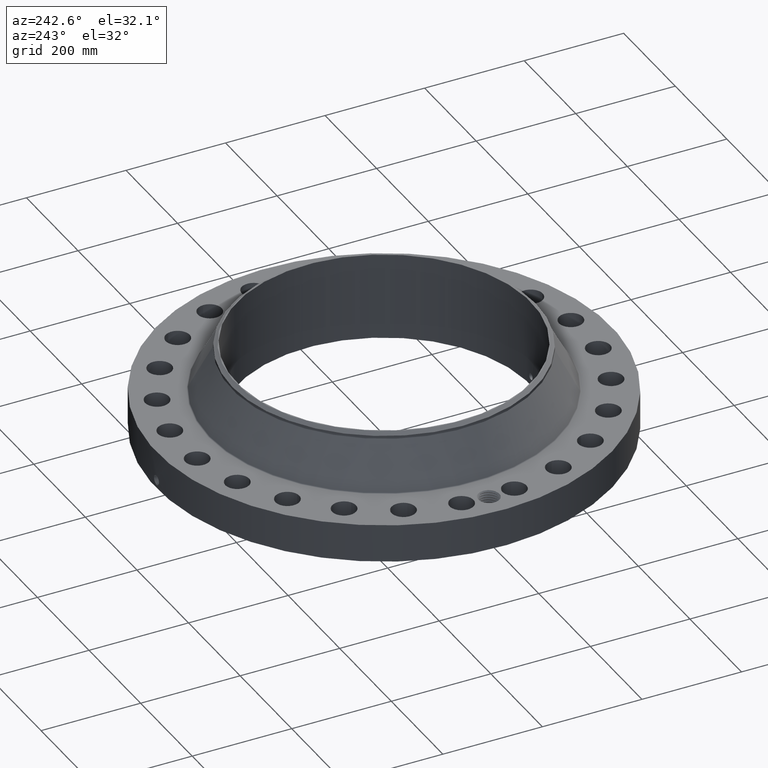
[diagram: clean part render]
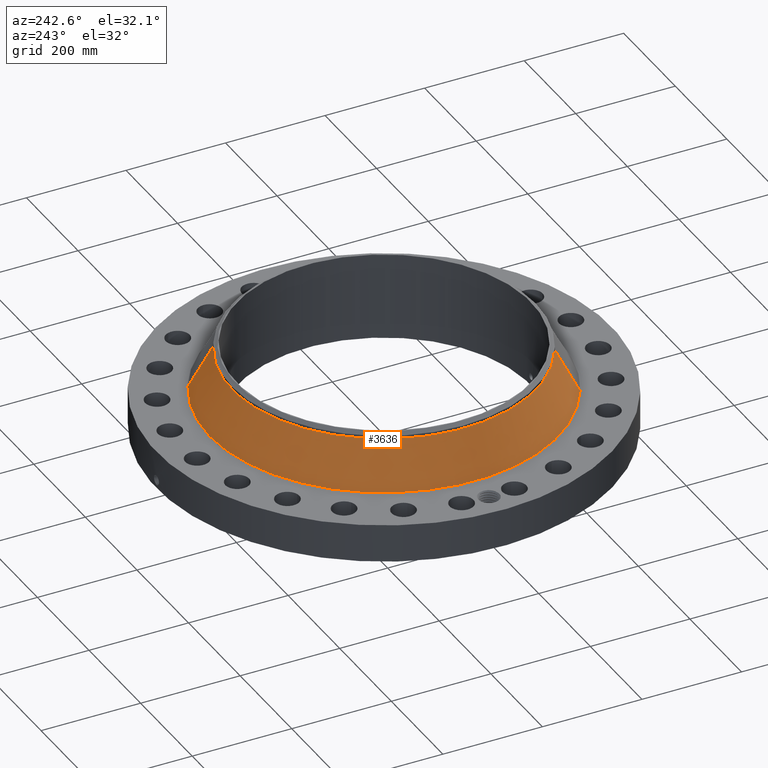
[diagram: same view with one face highlighted and labeled with its STEP entity id]
A machine part, auxiliary view. The second image highlights one B-rep face of the part: STEP entity #3636.
In plain terms, the highlighted conical surface has half-angle 27.914 deg.
Its self-contained STEP definition (entity closure, byte-faithful):
#2881=AXIS2_PLACEMENT_3D('Circle Axis2P3D',#2879,#2880,$) ;
#3597=AXIS2_PLACEMENT_3D('Cone Axis2P3D',#3594,#3595,#3596) ;
#3627=AXIS2_PLACEMENT_3D('Circle Axis2P3D',#3625,#3626,$) ;
#2857=CARTESIAN_POINT('Vertex',(6.60465619555,12.0897420721,3.31382219169)) ;
#2864=CARTESIAN_POINT('Vertex',(-6.60465619555,-12.0897420721,3.31382219169)) ;
#2879=CARTESIAN_POINT('Axis2P3D Location',(0.,0.,3.31382219169)) ;
#3594=CARTESIAN_POINT('Axis2P3D Location',(0.,0.,6.66645135497)) ;
#3599=CARTESIAN_POINT('Line Origine',(6.17888132941,11.3103664074,4.99013677333)) ;
#3603=CARTESIAN_POINT('Vertex',(5.75310646327,10.5309907427,6.66645135497)) ;
#3610=CARTESIAN_POINT('Vertex',(-5.75310646327,-10.5309907427,6.66645135497)) ;
#3613=CARTESIAN_POINT('Line Origine',(-6.17888132941,-11.3103664074,4.99013677333)) ;
#3625=CARTESIAN_POINT('Axis2P3D Location',(0.,0.,6.66645135497)) ;
#2880=DIRECTION('Axis2P3D Direction',(0.,0.,-0.0393700787402)) ;
#3595=DIRECTION('Axis2P3D Direction',(0.,0.,-0.0393700787402)) ;
#3596=DIRECTION('Axis2P3D XDirection',(-0.0188750212049,-0.0345504945626,0.)) ;
#3600=DIRECTION('Vector Direction',(0.00883631102716,0.0161747588404,-0.0347893645227)) ;
#3614=DIRECTION('Vector Direction',(-0.00883631102716,-0.0161747588404,-0.0347893645227)) ;
#3626=DIRECTION('Axis2P3D Direction',(0.,0.,-0.0393700787402)) ;
#3601=VECTOR('Line Direction',#3600,0.0393700787402) ;
#3615=VECTOR('Line Direction',#3614,0.0393700787402) ;
#3631=ORIENTED_EDGE('',*,*,#2883,.F.) ;
#3632=ORIENTED_EDGE('',*,*,#3617,.T.) ;
#3633=ORIENTED_EDGE('',*,*,#3629,.T.) ;
#3634=ORIENTED_EDGE('',*,*,#3605,.F.) ;
#3636=ADVANCED_FACE('PartBody',(#3635),#3598,.T.) ;
#2882=CIRCLE('generated circle',#2881,13.7761876741) ;
#3628=CIRCLE('generated circle',#3627,12.) ;
#3598=CONICAL_SURFACE('Cone',#3597,12.,0.487194215022) ;
#2883=EDGE_CURVE('',#2865,#2858,#2882,.T.) ;
#3605=EDGE_CURVE('',#2858,#3604,#3602,.F.) ;
#3617=EDGE_CURVE('',#2865,#3611,#3616,.F.) ;
#3629=EDGE_CURVE('',#3611,#3604,#3628,.T.) ;
#3630=EDGE_LOOP('',(#3631,#3632,#3633,#3634)) ;
#3635=FACE_OUTER_BOUND('',#3630,.T.) ;
#3602=LINE('Line',#3599,#3601) ;
#3616=LINE('Line',#3613,#3615) ;
#2858=VERTEX_POINT('',#2857) ;
#2865=VERTEX_POINT('',#2864) ;
#3604=VERTEX_POINT('',#3603) ;
#3611=VERTEX_POINT('',#3610) ;